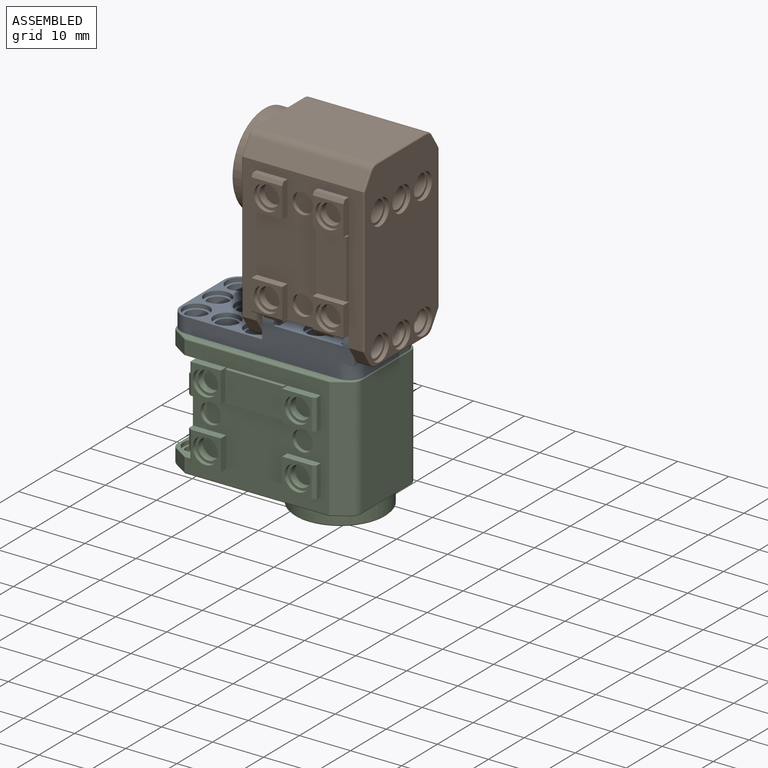
[diagram: assembled view]
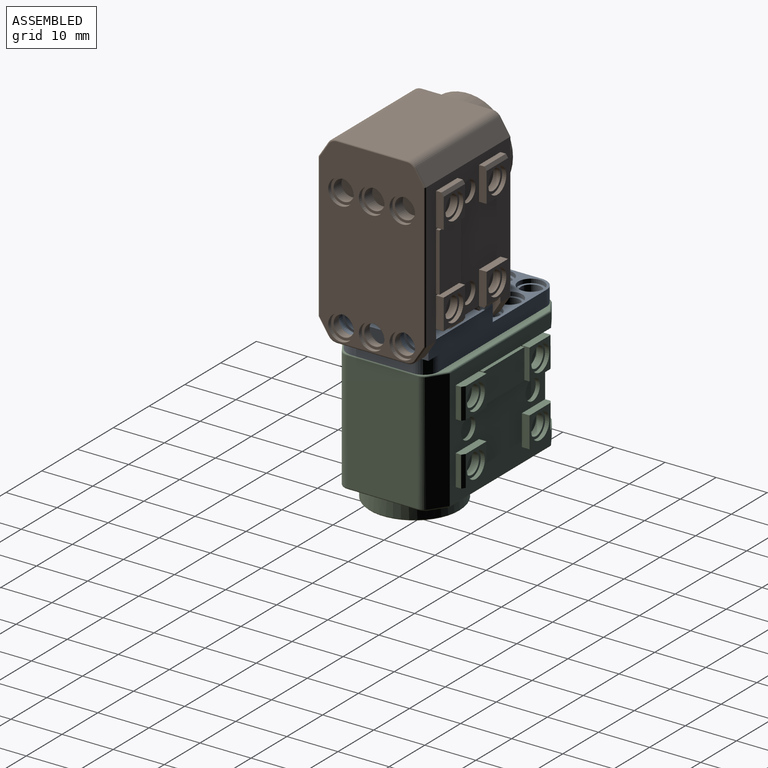
[diagram: assembled view, second angle]
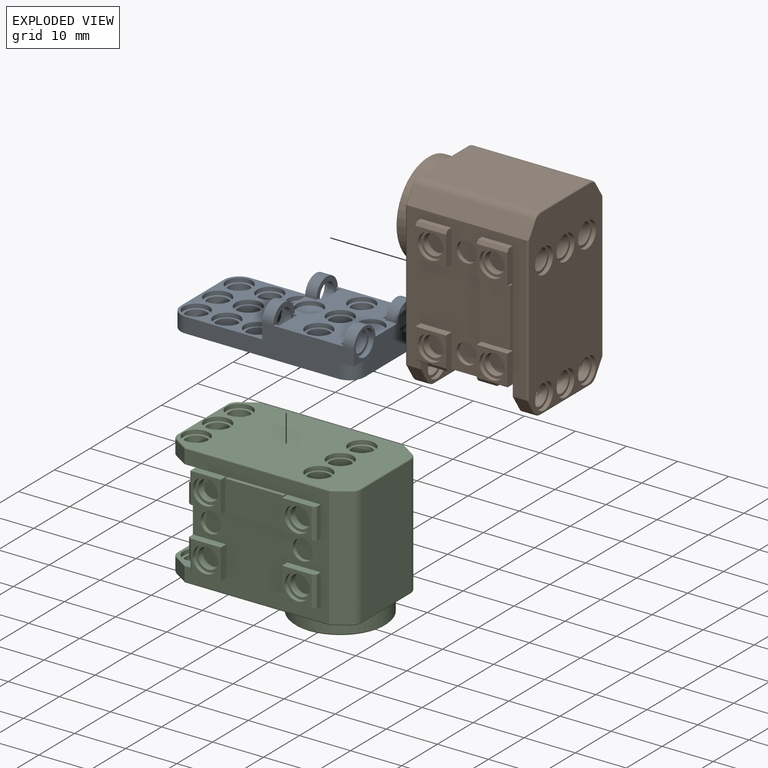
[diagram: exploded view]
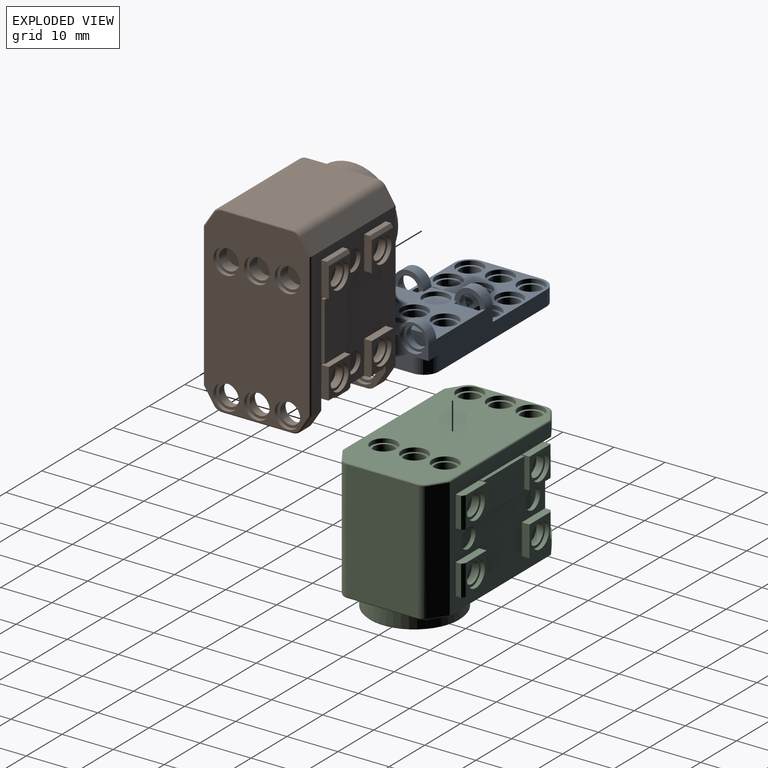
[diagram: exploded view, second angle]
ASSEMBLY  parts=3 mates=2
PART A: 118 faces, bbox 36x18x9 mm
  f0: plane 3x3mm, normal (0,0,-1), area 1.9mm2, adj f32,f41,f97
  f1: plane 18x6mm, normal (1,0,0), area 43mm2, adj f40,f41,f42,f43,f44,f45,f47,f48
  f2: plane 5x5mm, normal (-1,0,0), area 7.1mm2, adj f8,f10
  f3: plane 5x5mm, normal (-1,0,0), area 7.1mm2, adj f9,f11
  f4: cylinder r=2mm len=4.4mm, axis (0,0,1), area 55.3mm2, adj f12,f81
  f5: cylinder r=2mm len=4.4mm, axis (0,0,1), area 55.3mm2, adj f13,f80
  f6: cylinder r=2mm len=4.4mm, axis (0,0,1), area 55.3mm2, adj f14,f79
  f7: plane 3x3mm, normal (0,0,-1), area 1.9mm2, adj f32,f42,f98
  f8: cylinder r=2mm len=4mm, axis (1,0,0), area 15.1mm2, adj f2,f21
  f9: cylinder r=2mm len=4mm, axis (1,0,0), area 15.1mm2, adj f3,f30
  f10: cylinder r=2.5mm len=5mm, axis (1,0,0), area 15.7mm2, adj f2,f32
  f11: cylinder r=2.5mm len=5mm, axis (1,0,0), area 15.7mm2, adj f3,f32
  f12: plane 5x5mm, normal (0,0,1), area 7.1mm2, adj f4,f33
  f13: plane 5x5mm, normal (0,0,1), area 7.1mm2, adj f5,f34
  f14: plane 5x5mm, normal (0,0,1), area 7.1mm2, adj f6,f35
  f15: plane 5x5mm, normal (0,0,1), area 19.6mm2, adj f36
  f16: plane 5x5mm, normal (0,0,1), area 19.6mm2, adj f37
  f17: cylinder r=2mm len=4mm, axis (-1,0,0), area 15.1mm2, adj f24,f38
  f18: cylinder r=3mm len=6mm, axis (1,0,0), area 20.7mm2, adj f21,f32,f41,f44
  f19: plane 5x2.5mm, normal (-1,0,0), area 9.8mm2, adj f20,f44
  f20: cylinder r=2.5mm len=5mm, axis (1,0,0), area 6.3mm2, adj f19,f21,f44
  f21: plane 6x5.5mm, normal (1,0,0), area 11.4mm2, adj f8,f18,f20,f44
  f22: plane 5x2.5mm, normal (1,0,0), area 9.8mm2, adj f23,f44
  f23: cylinder r=2.5mm len=5mm, axis (-1,0,0), area 6.3mm2, adj f22,f24,f44
  f24: plane 6x5.5mm, normal (-1,0,0), area 11.4mm2, adj f17,f23,f40,f44
  f25: plane 5x2.5mm, normal (1,0,0), area 9.8mm2, adj f26,f44
  f26: cylinder r=2.5mm len=5mm, axis (-1,0,0), area 6.3mm2, adj f25,f27,f44
  f27: plane 6x5.5mm, normal (-1,0,0), area 11.4mm2, adj f26,f39,f43,f44
  f28: plane 5x2.5mm, normal (-1,0,0), area 9.8mm2, adj f29,f44
  f29: cylinder r=2.5mm len=5mm, axis (1,0,0), area 6.3mm2, adj f28,f30,f44
  f30: plane 6x5.5mm, normal (1,0,0), area 11.4mm2, adj f9,f29,f31,f44
  f31: cylinder r=3mm len=6mm, axis (1,0,0), area 20.7mm2, adj f30,f32,f42,f44
  f32: plane 18x9mm, normal (-1,0,0), area 79mm2, adj f0,f7,f10,f11,f18,f31,f41,f42
  f33: cylinder r=2.5mm len=5mm, axis (0,0,-1), area 12.6mm2, adj f12,f44
  f34: cylinder r=2.5mm len=5mm, axis (0,0,-1), area 12.6mm2, adj f13,f44
  f35: cylinder r=2.5mm len=5mm, axis (0,0,-1), area 12.6mm2, adj f14,f44
  f36: cylinder r=2.5mm len=5mm, axis (0,0,-1), area 12.6mm2, adj f15,f44
  f37: cylinder r=2.5mm len=5mm, axis (0,0,-1), area 12.6mm2, adj f16,f44
  f38: plane 5x5mm, normal (1,0,0), area 7.1mm2, adj f17,f45
  f39: cylinder r=2mm len=4mm, axis (-1,0,0), area 15.1mm2, adj f27,f46
  f40: cylinder r=3mm len=6mm, axis (-1,0,0), area 20.7mm2, adj f1,f24,f41,f44
  f41: plane 33x6mm, normal (0,1,0), area 144mm2, adj f0,f1,f18,f32,f40,f44,f48,f49
  f42: plane 33x6mm, normal (0,-1,0), area 144mm2, adj f1,f7,f31,f32,f43,f44,f48,f49
  f43: cylinder r=3mm len=6mm, axis (-1,0,0), area 20.7mm2, adj f1,f27,f42,f44
  f44: plane 18x18mm, normal (0,0,1), area 157mm2, adj f1,f18,f19,f20,f21,f22,f23,f24
  f45: cylinder r=2.5mm len=5mm, axis (-1,0,0), area 15.7mm2, adj f1,f38
  f46: plane 5x5mm, normal (1,0,0), area 7.1mm2, adj f39,f47
  f47: cylinder r=2.5mm len=5mm, axis (-1,0,0), area 15.7mm2, adj f1,f46
  f48: plane 18x18mm, normal (0,0,1), area 143.4mm2, adj f1,f41,f42,f58,f59,f60,f61,f62
  f49: plane 36x18mm, normal (0,0,-1), area 286.8mm2, adj f32,f41,f42,f94,f95,f96,f97,f98
  f50: plane 5x5mm, normal (0,0,1), area 7.1mm2, adj f58,f67
  f51: plane 5x5mm, normal (0,0,1), area 7.1mm2, adj f59,f68
  f52: plane 5x5mm, normal (0,0,1), area 7.1mm2, adj f60,f69
  f53: plane 5x5mm, normal (0,0,1), area 7.1mm2, adj f61,f70
  f54: plane 5x5mm, normal (0,0,1), area 7.1mm2, adj f62,f71
  f55: plane 5x5mm, normal (0,0,1), area 7.1mm2, adj f63,f72
  f56: plane 5x5mm, normal (0,0,1), area 7.1mm2, adj f64,f73
  f57: plane 5x5mm, normal (0,0,1), area 7.1mm2, adj f65,f74
  f58: cylinder r=2.5mm len=5mm, axis (0,0,-1), area 12.6mm2, adj f48,f50
  f59: cylinder r=2.5mm len=5mm, axis (0,0,-1), area 12.6mm2, adj f48,f51
  f60: cylinder r=2.5mm len=5mm, axis (0,0,-1), area 12.6mm2, adj f48,f52
  f61: cylinder r=2.5mm len=5mm, axis (0,0,-1), area 12.6mm2, adj f48,f53
  f62: cylinder r=2.5mm len=5mm, axis (0,0,-1), area 12.6mm2, adj f48,f54
  f63: cylinder r=2.5mm len=5mm, axis (0,0,-1), area 12.6mm2, adj f48,f55
  f64: cylinder r=2.5mm len=5mm, axis (0,0,-1), area 12.6mm2, adj f48,f56
  f65: cylinder r=2.5mm len=5mm, axis (0,0,-1), area 12.6mm2, adj f48,f57
  f66: cylinder r=2.5mm len=5mm, axis (0,0,-1), area 12.6mm2, adj f48,f75
  f67: cylinder r=2mm len=4mm, axis (0,0,-1), area 17.6mm2, adj f50,f85
  f68: cylinder r=2mm len=4mm, axis (0,0,-1), area 17.6mm2, adj f51,f86
  f69: cylinder r=2mm len=4mm, axis (0,0,-1), area 17.6mm2, adj f52,f87
  f70: cylinder r=2mm len=4mm, axis (0,0,-1), area 17.6mm2, adj f53,f88
  f71: cylinder r=2mm len=4mm, axis (0,0,-1), area 17.6mm2, adj f54,f89
  f72: cylinder r=2mm len=4mm, axis (0,0,-1), area 17.6mm2, adj f55,f90
  f73: cylinder r=2mm len=4mm, axis (0,0,-1), area 17.6mm2, adj f56,f91
  f74: cylinder r=2mm len=4mm, axis (0,0,-1), area 17.6mm2, adj f57,f92
  f75: plane 5x5mm, normal (0,0,1), area 7.1mm2, adj f66,f93
  f76: plane 5x5mm, normal (0,0,-1), area 19.6mm2, adj f99
  f77: plane 5x5mm, normal (0,0,-1), area 19.6mm2, adj f100
  f78: plane 5x5mm, normal (0,0,-1), area 19.6mm2, adj f101
  f79: plane 5x5mm, normal (0,0,-1), area 7.1mm2, adj f6,f102
  f80: plane 5x5mm, normal (0,0,-1), area 7.1mm2, adj f5,f103
  f81: plane 5x5mm, normal (0,0,-1), area 7.1mm2, adj f4,f104
  f82: plane 5x5mm, normal (0,0,-1), area 19.6mm2, adj f105
  f83: plane 5x5mm, normal (0,0,-1), area 19.6mm2, adj f106
  f84: plane 5x5mm, normal (0,0,-1), area 19.6mm2, adj f107
  f85: plane 5x5mm, normal (0,0,-1), area 7.1mm2, adj f67,f108
  f86: plane 5x5mm, normal (0,0,-1), area 7.1mm2, adj f68,f109
  f87: plane 5x5mm, normal (0,0,-1), area 7.1mm2, adj f69,f110
  f88: plane 5x5mm, normal (0,0,-1), area 7.1mm2, adj f70,f111
  f89: plane 5x5mm, normal (0,0,-1), area 7.1mm2, adj f71,f112
  f90: plane 5x5mm, normal (0,0,-1), area 7.1mm2, adj f72,f113
  f91: plane 5x5mm, normal (0,0,-1), area 7.1mm2, adj f73,f114
  f92: plane 5x5mm, normal (0,0,-1), area 7.1mm2, adj f74,f115
  f93: cylinder r=2mm len=4mm, axis (0,0,-1), area 17.6mm2, adj f75,f116
  f94: cylinder r=3mm len=3mm, axis (0,0,1), area 14.1mm2, adj f42,f48,f49,f95
  f95: plane 12x3mm, normal (1,0,0), area 36mm2, adj f48,f49,f94,f96
  f96: cylinder r=3mm len=3mm, axis (0,0,1), area 14.1mm2, adj f41,f48,f49,f95
  f97: cylinder r=3mm len=3mm, axis (0,0,1), area 14.1mm2, adj f0,f32,f41,f49
  f98: cylinder r=3mm len=3mm, axis (0,0,1), area 14.1mm2, adj f7,f32,f42,f49
  f99: cylinder r=2.5mm len=5mm, axis (0,0,1), area 12.6mm2, adj f49,f76
  f100: cylinder r=2.5mm len=5mm, axis (0,0,1), area 12.6mm2, adj f49,f77
  f101: cylinder r=2.5mm len=5mm, axis (0,0,1), area 12.6mm2, adj f49,f78
  f102: cylinder r=2.5mm len=5mm, axis (0,0,1), area 12.6mm2, adj f49,f79
  f103: cylinder r=2.5mm len=5mm, axis (0,0,1), area 12.6mm2, adj f49,f80
  f104: cylinder r=2.5mm len=5mm, axis (0,0,1), area 12.6mm2, adj f49,f81
  f105: cylinder r=2.5mm len=5mm, axis (0,0,1), area 12.6mm2, adj f49,f82
  f106: cylinder r=2.5mm len=5mm, axis (0,0,1), area 12.6mm2, adj f49,f83
  f107: cylinder r=2.5mm len=5mm, axis (0,0,1), area 12.6mm2, adj f49,f84
  f108: cylinder r=2.5mm len=5mm, axis (0,0,1), area 12.6mm2, adj f49,f85
  f109: cylinder r=2.5mm len=5mm, axis (0,0,1), area 12.6mm2, adj f49,f86
  f110: cylinder r=2.5mm len=5mm, axis (0,0,1), area 12.6mm2, adj f49,f87
  f111: cylinder r=2.5mm len=5mm, axis (0,0,1), area 12.6mm2, adj f49,f88
  f112: cylinder r=2.5mm len=5mm, axis (0,0,1), area 12.6mm2, adj f49,f89
  f113: cylinder r=2.5mm len=5mm, axis (0,0,1), area 12.6mm2, adj f49,f90
  f114: cylinder r=2.5mm len=5mm, axis (0,0,1), area 12.6mm2, adj f49,f91
  f115: cylinder r=2.5mm len=5mm, axis (0,0,1), area 12.6mm2, adj f49,f92
  f116: plane 5x5mm, normal (0,0,-1), area 7.1mm2, adj f93,f117
  f117: cylinder r=2.5mm len=5mm, axis (0,0,1), area 12.6mm2, adj f49,f116
PART B: 229 faces, bbox 24x36.3x27 mm
  f0: torus R=1.7mm, axis (0,0,1), area 0.9mm2, adj f2,f5,f98,f144
  f1: torus R=1.7mm, axis (0,0,1), area 0.9mm2, adj f4,f6,f98,f144
  f2: cylinder r=0.3mm len=3.1mm, axis (-0.54,0.84,0), area 1.6mm2, adj f0,f11,f144,f150
  f3: cylinder r=2.5mm len=13.5mm, axis (0,0,-1), area 31.3mm2, adj f103,f104,f129,f154
  f4: cylinder r=0.3mm len=3.1mm, axis (-0.54,-0.84,0), area 1.6mm2, adj f1,f14,f144,f170
  f5: cylinder r=2mm len=2.7mm, axis (0,0,-1), area 5.4mm2, adj f0,f132,f150,f179
  f6: cylinder r=2mm len=2.7mm, axis (0,0,-1), area 5.4mm2, adj f1,f132,f170,f179
  f7: cylinder r=0.3mm len=3.1mm, axis (0.54,-0.84,0), area 1.6mm2, adj f8,f14,f144,f207
  f8: torus R=1.7mm, axis (0,0,-1), area 0.9mm2, adj f7,f144,f191,f208
  f9: cylinder r=8.9mm len=17.8mm, axis (0,0,-1), area 156.6mm2, adj f97,f144,f191
  f10: cylinder r=2.5mm len=5mm, axis (0,0,-1), area 12.6mm2, adj f171,f199
  f11: cylinder r=0.3mm len=28.3mm, axis (0,1,0), area 13.3mm2, adj f2,f144,f193,f200
  f12: cylinder r=2mm len=4mm, axis (-1,0,0), area 10.1mm2, adj f109,f200
  f13: cylinder r=2mm len=4mm, axis (-1,0,0), area 10.1mm2, adj f110,f200
  f14: cylinder r=0.3mm len=28.3mm, axis (0,-1,0), area 13.3mm2, adj f4,f7,f144,f206
  f15: cylinder r=2mm len=4mm, axis (-1,0,0), area 10.1mm2, adj f138,f206
  f16: cylinder r=2mm len=4mm, axis (-1,0,0), area 10.1mm2, adj f139,f206
  f17: plane 11.4x0.7mm, normal (0,0,-1), area 8mm2, adj f137,f180,f182,f206
  f18: cylinder r=2.5mm len=5mm, axis (0,0,1), area 12.6mm2, adj f19,f20
  f19: plane 35.4x20.4mm, normal (0,0,-1), area 586.6mm2, adj f18,f21,f22,f23,f24,f25,f26,f218
  f20: plane 5x5mm, normal (0,0,-1), area 7.1mm2, adj f18,f217
  f21: cylinder r=2.5mm len=5mm, axis (0,0,1), area 12.6mm2, adj f19,f216
  f22: torus R=1.7mm, axis (0,0,1), area 0.9mm2, adj f19,f202,f219,f220
  f23: torus R=1.7mm, axis (0,0,1), area 0.9mm2, adj f19,f204,f220,f221
  f24: cylinder r=0.3mm len=3.1mm, axis (-0.54,0.84,0), area 1.6mm2, adj f19,f25,f207,f222
  f25: torus R=1.7mm, axis (0,0,-1), area 0.9mm2, adj f19,f24,f208,f223
  f26: torus R=1.7mm, axis (0,0,-1), area 0.9mm2, adj f19,f210,f223,f224
  f27: plane 4x4mm, normal (0,0,1), area 12.6mm2, adj f31
  f28: plane 4x4mm, normal (0,0,1), area 12.6mm2, adj f32
  f29: plane 4x4mm, normal (0,0,1), area 12.6mm2, adj f33
  f30: plane 4x4mm, normal (0,0,1), area 12.6mm2, adj f34
  f31: cylinder r=2mm len=4mm, axis (0,0,-1), area 27.6mm2, adj f27,f48
  f32: cylinder r=2mm len=4mm, axis (0,0,-1), area 27.6mm2, adj f28,f49
  f33: cylinder r=2mm len=4mm, axis (0,0,-1), area 27.6mm2, adj f29,f50
  f34: cylinder r=2mm len=4mm, axis (0,0,-1), area 27.6mm2, adj f30,f51
  f35: plane 4x4mm, normal (-1,0,0), area 12.6mm2, adj f52
  f36: plane 4x4mm, normal (-1,0,0), area 12.6mm2, adj f53
  f37: plane 4x4mm, normal (-1,0,0), area 12.6mm2, adj f54
  f38: plane 4x4mm, normal (-1,0,0), area 12.6mm2, adj f55
  f39: plane 4x4mm, normal (1,0,0), area 12.6mm2, adj f56
  f40: plane 4x4mm, normal (1,0,0), area 12.6mm2, adj f57
  f41: plane 4x4mm, normal (1,0,0), area 12.6mm2, adj f58
  f42: plane 4x4mm, normal (1,0,0), area 12.6mm2, adj f59
  f43: plane 1.6x1.6mm, normal (0,0,1), area 2mm2, adj f60
  f44: plane 1.6x1.6mm, normal (0,0,1), area 2mm2, adj f61
  f45: plane 1.6x1.6mm, normal (0,0,1), area 2mm2, adj f62
  f46: plane 1.6x1.6mm, normal (0,0,1), area 2mm2, adj f63
  f47: sphere r=8.09mm, area 25.4mm2, adj f64
  f48: plane 5x5mm, normal (0,0,1), area 7.1mm2, adj f31,f65
  f49: plane 5x5mm, normal (0,0,1), area 7.1mm2, adj f32,f66
  f50: plane 5x5mm, normal (0,0,1), area 7.1mm2, adj f33,f67
  f51: plane 5x5mm, normal (0,0,1), area 7.1mm2, adj f34,f68
  f52: cylinder r=2mm len=4mm, axis (-1,0,0), area 17.6mm2, adj f35,f69
  f53: cylinder r=2mm len=4mm, axis (-1,0,0), area 17.6mm2, adj f36,f70
  f54: cylinder r=2mm len=4mm, axis (-1,0,0), area 17.6mm2, adj f37,f71
  f55: cylinder r=2mm len=4mm, axis (-1,0,0), area 17.6mm2, adj f38,f72
  f56: cylinder r=2mm len=4mm, axis (-1,0,0), area 17.6mm2, adj f39,f73
  f57: cylinder r=2mm len=4mm, axis (-1,0,0), area 17.6mm2, adj f40,f74
  f58: cylinder r=2mm len=4mm, axis (-1,0,0), area 17.6mm2, adj f41,f78
  f59: cylinder r=2mm len=4mm, axis (-1,0,0), area 17.6mm2, adj f42,f79
  f60: cylinder r=0.8mm len=3mm, axis (0,0,-1), area 15.1mm2, adj f43,f80
  f61: cylinder r=0.8mm len=3mm, axis (0,0,-1), area 15.1mm2, adj f44,f80
  f62: cylinder r=0.8mm len=3mm, axis (0,0,-1), area 15.1mm2, adj f45,f80
  f63: cylinder r=0.8mm len=3mm, axis (0,0,-1), area 15.1mm2, adj f46,f80
  f64: cylinder r=2.8mm len=5.6mm, axis (0,0,-1), area 8.8mm2, adj f47,f80
  f65: cylinder r=2.5mm len=5mm, axis (0,0,-1), area 12.6mm2, adj f48,f80
  f66: cylinder r=2.5mm len=5mm, axis (0,0,-1), area 12.6mm2, adj f49,f80
  f67: cylinder r=2.5mm len=5mm, axis (0,0,-1), area 12.6mm2, adj f50,f80
  f68: cylinder r=2.5mm len=5mm, axis (0,0,-1), area 12.6mm2, adj f51,f80
  f69: plane 5x5mm, normal (-1,0,0), area 7.1mm2, adj f52,f84
  f70: plane 5x5mm, normal (-1,0,0), area 7.1mm2, adj f53,f85
  f71: plane 5x5mm, normal (-1,0,0), area 7.1mm2, adj f54,f86
  f72: plane 5x5mm, normal (-1,0,0), area 7.1mm2, adj f55,f87
  f73: plane 5x5mm, normal (1,0,0), area 7.1mm2, adj f56,f88
  f74: plane 5x5mm, normal (1,0,0), area 7.1mm2, adj f57,f89
  f75: cylinder r=2mm len=4mm, axis (0,0,-1), area 17.6mm2, adj f82,f90
  f76: cylinder r=2mm len=4mm, axis (0,0,-1), area 17.6mm2, adj f81,f93
  f77: cylinder r=2mm len=4mm, axis (0,0,-1), area 17.6mm2, adj f83,f94
  f78: plane 5x5mm, normal (1,0,0), area 7.1mm2, adj f58,f95
  f79: plane 5x5mm, normal (1,0,0), area 7.1mm2, adj f59,f96
  f80: plane 17.4x17.4mm, normal (0,0,1), area 126.6mm2, adj f60,f61,f62,f63,f64,f65,f66,f67
  f81: plane 5x5mm, normal (0,0,1), area 7.1mm2, adj f76,f99
  f82: plane 5x5mm, normal (0,0,1), area 7.1mm2, adj f75,f100
  f83: plane 5x5mm, normal (0,0,1), area 7.1mm2, adj f77,f101
  f84: cylinder r=2.5mm len=5mm, axis (-1,0,0), area 12.6mm2, adj f69,f102
  f85: cylinder r=2.5mm len=5mm, axis (-1,0,0), area 12.6mm2, adj f70,f107
  f86: cylinder r=2.5mm len=5mm, axis (-1,0,0), area 12.6mm2, adj f71,f112
  f87: cylinder r=2.5mm len=5mm, axis (-1,0,0), area 12.6mm2, adj f72,f114
  f88: cylinder r=2.5mm len=5mm, axis (-1,0,0), area 12.6mm2, adj f73,f121
  f89: cylinder r=2.5mm len=5mm, axis (-1,0,0), area 12.6mm2, adj f74,f127
  f90: plane 5x5mm, normal (0,0,-1), area 7.1mm2, adj f75,f128
  f91: plane 4x1mm, normal (0,0,-1), area 2.8mm2, adj f115,f129
  f92: plane 4x1mm, normal (0,0,1), area 2.8mm2, adj f128,f129
  f93: plane 5x5mm, normal (0,0,-1), area 7.1mm2, adj f76,f135
  f94: plane 5x5mm, normal (0,0,-1), area 7.1mm2, adj f77,f136
  f95: cylinder r=2.5mm len=5mm, axis (-1,0,0), area 12.6mm2, adj f78,f141
  f96: cylinder r=2.5mm len=5mm, axis (-1,0,0), area 12.6mm2, adj f79,f143
  f97: cone r=707.11mm half-angle=45deg, axis (0,0,-1), area 15.6mm2, adj f9,f80
  f98: cylinder r=0.3mm len=13.83mm, axis (-1,0,0), area 6.5mm2, adj f0,f1,f132,f144
  f99: cylinder r=2.5mm len=5mm, axis (0,0,-1), area 12.6mm2, adj f81,f144
  f100: cylinder r=2.5mm len=5mm, axis (0,0,-1), area 12.6mm2, adj f82,f144
  f101: cylinder r=2.5mm len=5mm, axis (0,0,-1), area 12.6mm2, adj f83,f144
  f102: plane 6x5.84mm, normal (-1,0,0), area 15.4mm2, adj f84,f105,f151,f152,f153
  f103: plane 8.54x1.53mm, normal (0,0,-1), area 4.5mm2, adj f3,f106,f116,f117,f129,f154
  f104: plane 8.54x1.53mm, normal (0,0,1), area 4.5mm2, adj f3,f105,f129,f130,f131,f154
  f105: plane 6x0.66mm, normal (-0.84,-0.54,0), area 3.3mm2, adj f102,f104,f131,f151,f153,f154
  f106: plane 6x0.66mm, normal (-0.84,-0.54,0), area 3.3mm2, adj f103,f107,f117,f154,f155,f157
  f107: plane 6x5.84mm, normal (-1,0,0), area 15.4mm2, adj f85,f106,f155,f156,f157
  f108: plane 11.4x6mm, normal (-1,0,0), area 68.4mm2, adj f158,f159,f160,f161
  f109: plane 4x4mm, normal (-1,0,0), area 12.6mm2, adj f12
  f110: plane 4x4mm, normal (-1,0,0), area 12.6mm2, adj f13
  f111: plane 6x0.66mm, normal (-0.84,0.54,0), area 4.7mm2, adj f112,f163,f164,f165
  f112: plane 6x5.84mm, normal (-1,0,0), area 15.4mm2, adj f86,f111,f162,f163,f165
  f113: plane 6x0.66mm, normal (-0.84,0.54,0), area 4.7mm2, adj f114,f167,f168,f169
  f114: plane 6x5.84mm, normal (-1,0,0), area 15.4mm2, adj f87,f113,f166,f167,f169
  f115: cylinder r=2.5mm len=5mm, axis (0,0,-1), area 12.6mm2, adj f91,f145,f171
  f116: cylinder r=3.02mm len=2.63mm, axis (0,0,-1), area 7.2mm2, adj f103,f117,f129,f171
  f117: plane 5.91x2.25mm, normal (0,-1,0), area 13.3mm2, adj f103,f106,f116,f157,f171
  f118: cylinder r=3.02mm len=2.63mm, axis (0,0,-1), area 7.2mm2, adj f120,f124,f129,f171
  f119: cylinder r=2.5mm len=5mm, axis (0,0,-1), area 12.6mm2, adj f146,f171
  f120: plane 5.91x2.25mm, normal (0,-1,0), area 13.3mm2, adj f118,f124,f125,f171,f172
  f121: plane 6x5.84mm, normal (1,0,0), area 15.4mm2, adj f88,f125,f172,f173,f174
  f122: plane 8.54x1.53mm, normal (0,0,1), area 4.5mm2, adj f123,f126,f129,f133,f134,f175
  f123: cylinder r=2.5mm len=13.5mm, axis (0,0,-1), area 31.3mm2, adj f122,f124,f129,f175
  f124: plane 8.54x1.53mm, normal (0,0,-1), area 4.5mm2, adj f118,f120,f123,f125,f129,f175
  f125: plane 6x0.66mm, normal (0.84,-0.54,0), area 3.3mm2, adj f120,f121,f124,f172,f174,f175
  f126: plane 6x0.66mm, normal (0.84,-0.54,0), area 3.3mm2, adj f122,f127,f133,f175,f176,f178
  f127: plane 6x5.84mm, normal (1,0,0), area 15.4mm2, adj f89,f126,f176,f177,f178
  f128: cylinder r=2.5mm len=5mm, axis (0,0,-1), area 12.6mm2, adj f90,f92,f179
  f129: plane 18x8mm, normal (0,-1,0), area 138.4mm2, adj f3,f91,f92,f103,f104,f116,f118,f122
  f130: cylinder r=3.02mm len=2.63mm, axis (0,0,-1), area 7.2mm2, adj f104,f129,f131,f179
  f131: plane 5.91x2.25mm, normal (0,-1,0), area 13.3mm2, adj f104,f105,f130,f151,f179
  f132: plane 13.83x2.7mm, normal (0,-1,0), area 37.3mm2, adj f5,f6,f98,f179
  f133: plane 5.91x2.25mm, normal (0,-1,0), area 13.3mm2, adj f122,f126,f134,f178,f179
  f134: cylinder r=3.02mm len=2.63mm, axis (0,0,-1), area 7.2mm2, adj f122,f129,f133,f179
  f135: cylinder r=2.5mm len=5mm, axis (0,0,-1), area 12.6mm2, adj f93,f179
  f136: cylinder r=2.5mm len=5mm, axis (0,0,-1), area 12.6mm2, adj f94,f179
  f137: plane 11.4x6mm, normal (1,0,0), area 68.4mm2, adj f17,f180,f181,f182
  f138: plane 4x4mm, normal (1,0,0), area 12.6mm2, adj f15
  f139: plane 4x4mm, normal (1,0,0), area 12.6mm2, adj f16
  f140: plane 6x0.66mm, normal (0.84,0.54,0), area 4.7mm2, adj f141,f184,f185,f186
  f141: plane 6x5.84mm, normal (1,0,0), area 15.4mm2, adj f95,f140,f183,f184,f186
  f142: plane 6x0.66mm, normal (0.84,0.54,0), area 4.7mm2, adj f143,f188,f189,f190
  f143: plane 6x5.84mm, normal (1,0,0), area 15.4mm2, adj f96,f142,f187,f188,f190
  f144: plane 35.4x20.4mm, normal (0,0,1), area 397.2mm2, adj f0,f1,f2,f4,f7,f8,f9,f11
  f145: plane 5x5mm, normal (0,0,1), area 7.1mm2, adj f115,f194
  f146: plane 5x5mm, normal (0,0,1), area 7.1mm2, adj f119,f195
  f147: plane 4x4mm, normal (0,0,-1), area 12.6mm2, adj f196
  f148: plane 4x4mm, normal (0,0,-1), area 12.6mm2, adj f197
  f149: plane 4x4mm, normal (0,0,-1), area 12.6mm2, adj f198
  f150: plane 2.94x2.7mm, normal (-0.84,-0.54,0), area 9.5mm2, adj f2,f5,f179,f200
  f151: plane 5.98x1.5mm, normal (0,0,1), area 9mm2, adj f102,f105,f131,f152,f200
  f152: plane 6x1.5mm, normal (0,1,0), area 9mm2, adj f102,f151,f153,f200
  f153: plane 6.5x1.5mm, normal (0,0,-1), area 9.6mm2, adj f102,f105,f152,f154,f200
  f154: plane 13.5x5.57mm, normal (0,-1,0), area 68.8mm2, adj f3,f103,f104,f105,f106,f153,f155,f200
  f155: plane 6.5x1.5mm, normal (0,0,1), area 9.6mm2, adj f106,f107,f154,f156,f200
  f156: plane 6x1.5mm, normal (0,1,0), area 9mm2, adj f107,f155,f157,f200
  f157: plane 5.98x1.5mm, normal (0,0,-1), area 9mm2, adj f106,f107,f117,f156,f200
  f158: plane 6x0.7mm, normal (0,-1,0), area 4.2mm2, adj f108,f159,f161,f200
  f159: plane 11.4x0.7mm, normal (0,0,1), area 8mm2, adj f108,f158,f160,f200
  f160: plane 6x0.7mm, normal (0,1,0), area 4.2mm2, adj f108,f159,f161,f200
  f161: plane 11.4x0.7mm, normal (0,0,-1), area 8mm2, adj f108,f158,f160,f200
  f162: plane 6x1.5mm, normal (0,-1,0), area 9mm2, adj f112,f163,f165,f200
  f163: plane 6.5x1.5mm, normal (0,0,1), area 9.6mm2, adj f111,f112,f162,f164,f200
  f164: plane 6x1.07mm, normal (0,1,0), area 6.4mm2, adj f111,f163,f165,f200
  f165: plane 6.5x1.5mm, normal (0,0,-1), area 9.6mm2, adj f111,f112,f162,f164,f200
  f166: plane 6x1.5mm, normal (0,-1,0), area 9mm2, adj f114,f167,f169,f200
  f167: plane 6.5x1.5mm, normal (0,0,1), area 9.6mm2, adj f113,f114,f166,f168,f200
  f168: plane 6x1.07mm, normal (0,1,0), area 6.4mm2, adj f113,f167,f169,f200
  f169: plane 6.5x1.5mm, normal (0,0,-1), area 9.6mm2, adj f113,f114,f166,f168,f200
  f170: plane 2.94x2.7mm, normal (0.84,-0.54,0), area 9.5mm2, adj f4,f6,f179,f206
  f171: plane 21x6.03mm, normal (0,0,1), area 47.8mm2, adj f10,f115,f116,f117,f118,f119,f120,f129
  f172: plane 5.98x1.5mm, normal (0,0,-1), area 9mm2, adj f120,f121,f125,f173,f206
  f173: plane 6x1.5mm, normal (0,1,0), area 9mm2, adj f121,f172,f174,f206
  f174: plane 6.5x1.5mm, normal (0,0,1), area 9.6mm2, adj f121,f125,f173,f175,f206
  f175: plane 13.5x5.57mm, normal (0,-1,0), area 68.8mm2, adj f122,f123,f124,f125,f126,f174,f176,f206
  f176: plane 6.5x1.5mm, normal (0,0,-1), area 9.6mm2, adj f126,f127,f175,f177,f206
  f177: plane 6x1.5mm, normal (0,1,0), area 9mm2, adj f127,f176,f178,f206
  f178: plane 5.98x1.5mm, normal (0,0,1), area 9mm2, adj f126,f127,f133,f177,f206
  f179: plane 21x6.03mm, normal (0,0,-1), area 47.8mm2, adj f5,f6,f128,f129,f130,f131,f132,f133
  f180: plane 6x0.7mm, normal (0,1,0), area 4.2mm2, adj f17,f137,f181,f206
  f181: plane 11.4x0.7mm, normal (0,0,1), area 8mm2, adj f137,f180,f182,f206
  f182: plane 6x0.7mm, normal (0,-1,0), area 4.2mm2, adj f17,f137,f181,f206
  f183: plane 6x1.5mm, normal (0,-1,0), area 9mm2, adj f141,f184,f186,f206
  f184: plane 6.5x1.5mm, normal (0,0,-1), area 9.6mm2, adj f140,f141,f183,f185,f206
  f185: plane 6x1.07mm, normal (0,1,0), area 6.4mm2, adj f140,f184,f186,f206
  f186: plane 6.5x1.5mm, normal (0,0,1), area 9.6mm2, adj f140,f141,f183,f185,f206
  f187: plane 6x1.5mm, normal (0,-1,0), area 9mm2, adj f143,f188,f190,f206
  f188: plane 6.5x1.5mm, normal (0,0,-1), area 9.6mm2, adj f142,f143,f187,f189,f206
  f189: plane 6x1.07mm, normal (0,1,0), area 6.4mm2, adj f142,f188,f190,f206
  f190: plane 6.5x1.5mm, normal (0,0,1), area 9.6mm2, adj f142,f143,f187,f189,f206
  f191: cylinder r=0.3mm len=13.83mm, axis (1,0,0), area 6mm2, adj f8,f9,f144,f192,f209
  f192: torus R=1.7mm, axis (0,0,-1), area 0.9mm2, adj f144,f191,f193,f210
  f193: cylinder r=0.3mm len=3.1mm, axis (0.54,0.84,0), area 1.6mm2, adj f11,f144,f192,f211
  f194: cylinder r=2mm len=4mm, axis (0,0,-1), area 17.6mm2, adj f145,f212
  f195: cylinder r=2mm len=4mm, axis (0,0,-1), area 17.6mm2, adj f146,f213
  f196: cylinder r=2mm len=4mm, axis (0,0,1), area 27.6mm2, adj f147,f214
  f197: cylinder r=2mm len=4mm, axis (0,0,1), area 27.6mm2, adj f148,f215
  f198: cylinder r=2mm len=4mm, axis (0,0,1), area 27.6mm2, adj f149,f216
  f199: plane 5x5mm, normal (0,0,1), area 7.1mm2, adj f10,f217
  f200: plane 28.3x23.4mm, normal (-1,0,0), area 383mm2, adj f11,f12,f13,f150,f151,f152,f153,f154
  f201: plane 2.94x2.7mm, normal (-0.84,-0.54,0), area 9.5mm2, adj f171,f200,f202,f219
  f202: cylinder r=2mm len=2.7mm, axis (0,0,-1), area 5.4mm2, adj f22,f171,f201,f203
  f203: plane 13.83x2.7mm, normal (0,-1,0), area 37.3mm2, adj f171,f202,f204,f220
  f204: cylinder r=2mm len=2.7mm, axis (0,0,-1), area 5.4mm2, adj f23,f171,f203,f205
  f205: plane 2.94x2.7mm, normal (0.84,-0.54,0), area 9.5mm2, adj f171,f204,f206,f221
  f206: plane 28.3x23.4mm, normal (1,0,0), area 383mm2, adj f14,f15,f16,f17,f170,f171,f172,f173
  f207: plane 23.4x2.94mm, normal (0.84,0.54,0), area 82mm2, adj f7,f24,f206,f208
  f208: cylinder r=2mm len=23.4mm, axis (0,0,1), area 46.6mm2, adj f8,f25,f207,f209
  f209: plane 23.4x13.83mm, normal (0,1,0), area 323.6mm2, adj f191,f208,f210,f223
  f210: cylinder r=2mm len=23.4mm, axis (0,0,1), area 46.6mm2, adj f26,f192,f209,f211
  f211: plane 23.4x2.94mm, normal (-0.84,0.54,0), area 82mm2, adj f193,f200,f210,f224
  f212: plane 5x5mm, normal (0,0,-1), area 7.1mm2, adj f194,f225
  f213: plane 5x5mm, normal (0,0,-1), area 7.1mm2, adj f195,f226
  f214: plane 5x5mm, normal (0,0,-1), area 7.1mm2, adj f196,f227
  f215: plane 5x5mm, normal (0,0,-1), area 7.1mm2, adj f197,f228
  f216: plane 5x5mm, normal (0,0,-1), area 7.1mm2, adj f21,f198
  f217: cylinder r=2mm len=4mm, axis (0,0,-1), area 17.6mm2, adj f20,f199
  f218: cylinder r=0.3mm len=28.3mm, axis (0,-1,0), area 13.3mm2, adj f19,f200,f219,f224
  f219: cylinder r=0.3mm len=3.1mm, axis (0.54,-0.84,0), area 1.6mm2, adj f19,f22,f201,f218
  f220: cylinder r=0.3mm len=13.83mm, axis (1,0,0), area 6.5mm2, adj f19,f22,f23,f203
  f221: cylinder r=0.3mm len=3.1mm, axis (0.54,0.84,0), area 1.6mm2, adj f19,f23,f205,f222
  f222: cylinder r=0.3mm len=28.3mm, axis (0,1,0), area 13.3mm2, adj f19,f24,f206,f221
  f223: cylinder r=0.3mm len=13.83mm, axis (-1,0,0), area 6.5mm2, adj f19,f25,f26,f209
  f224: cylinder r=0.3mm len=3.1mm, axis (-0.54,-0.84,0), area 1.6mm2, adj f19,f26,f211,f218
  f225: cylinder r=2.5mm len=5mm, axis (0,0,1), area 12.6mm2, adj f19,f212
  f226: cylinder r=2.5mm len=5mm, axis (0,0,1), area 12.6mm2, adj f19,f213
  f227: cylinder r=2.5mm len=5mm, axis (0,0,1), area 12.6mm2, adj f19,f214
  f228: cylinder r=2.5mm len=5mm, axis (0,0,1), area 12.6mm2, adj f19,f215
PART C: same geometry as B
PLACE A rot(axis=(0,0,1),180deg) t=(9,9,-30)mm
PLACE B rot(axis=(0.58,-0.58,-0.58),120deg) t=(0,0,0)mm fixed
PLACE C rot(axis=(-0.71,-0.71,0),180deg) t=(0,0,-42)mm
MATE fastened A.f8 <-> B.f10  axis (1,0,0) through (9,-6,-24)mm
MATE fastened C.f75 <-> A.f65  axis (0,0,1) through (-24,0,-30)mm
